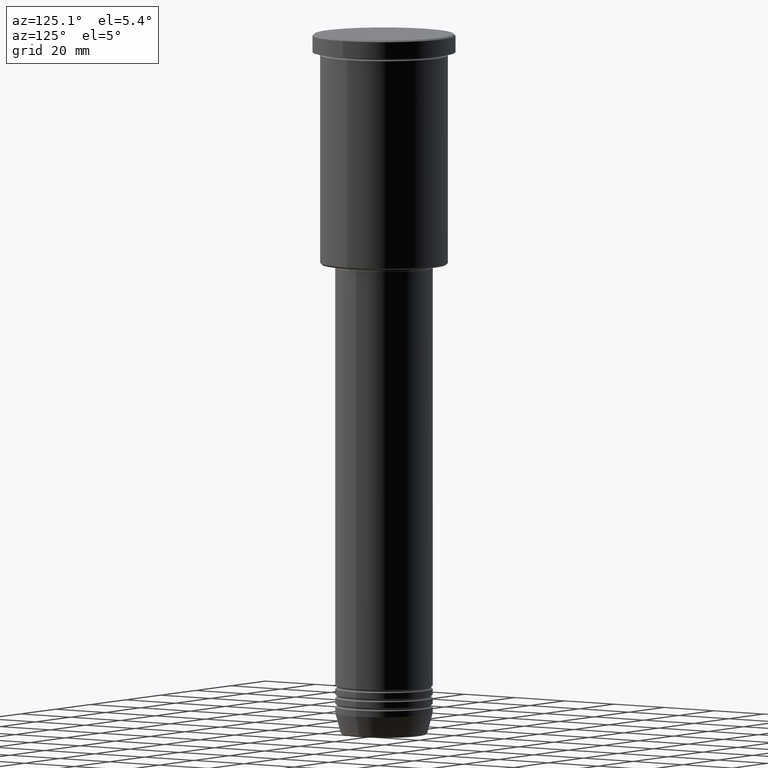
[diagram: clean part render]
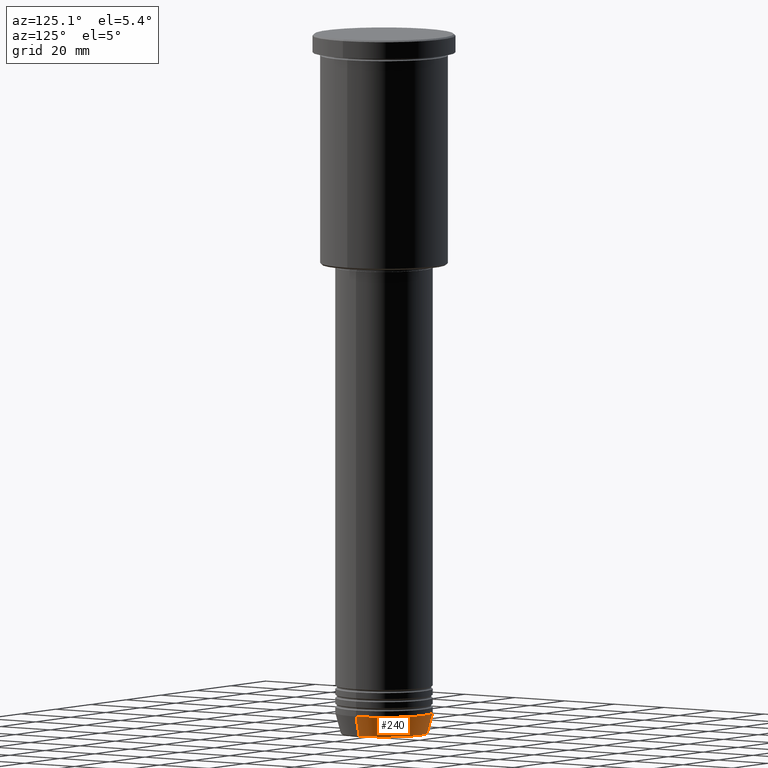
[diagram: same view with one face highlighted and labeled with its STEP entity id]
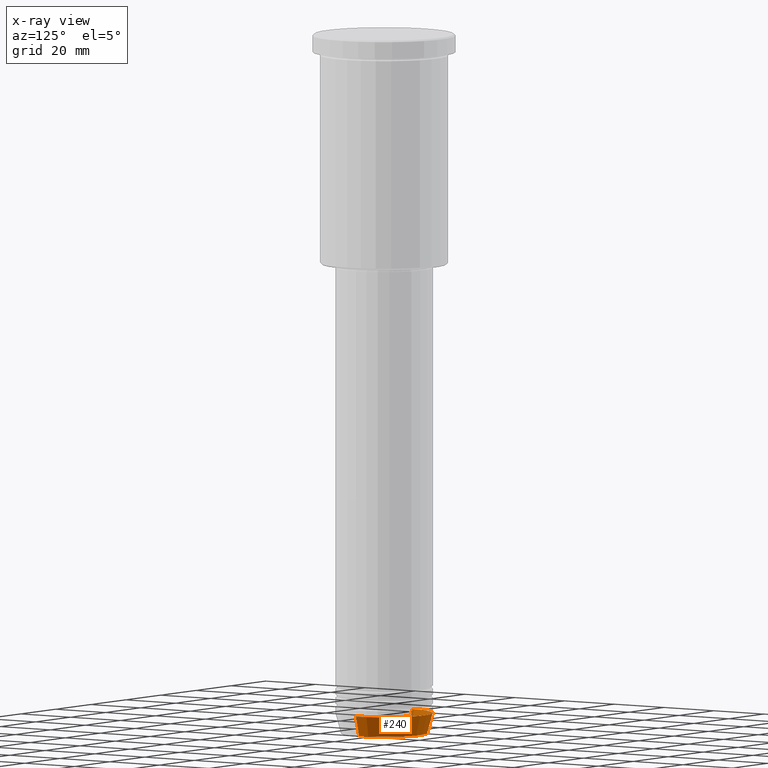
[diagram: x-ray of the same camera — body ghosted, the highlighted face saturated]
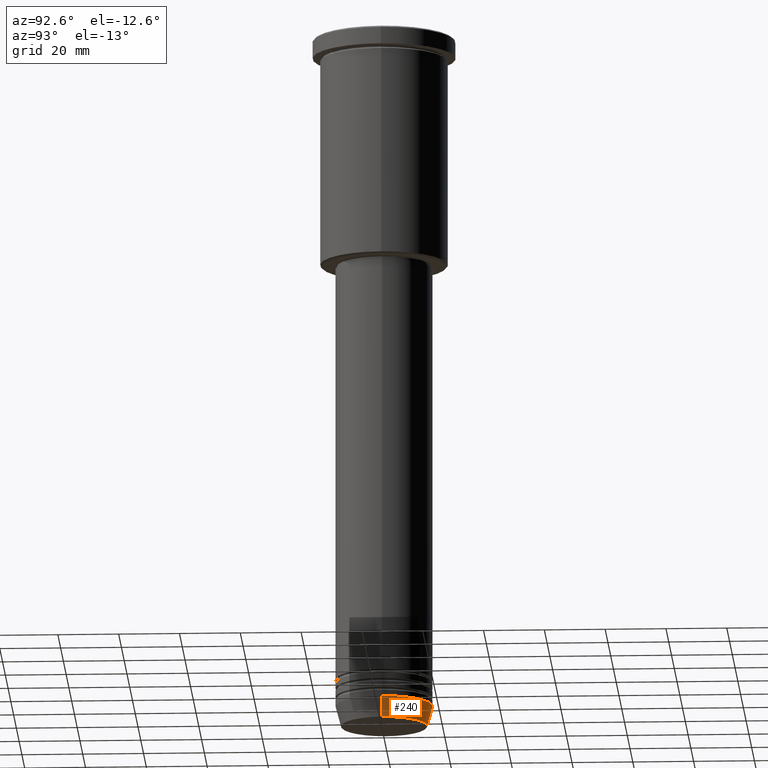
[diagram: same view with one face highlighted and labeled with its STEP entity id]
A machine part, auxiliary view. The second image highlights one B-rep face of the part: STEP entity #240.
The next image is the same camera in x-ray: the body ghosted, the highlighted face saturated — about 1% of this face is hidden behind the body in this view.
A second angle (auxiliary view) of the same face is appended — the face is thin or edge-on in the first view.
In plain terms, the highlighted conical surface has half-angle 15 deg.
Its self-contained STEP definition (entity closure, byte-faithful):
#16 = CARTESIAN_POINT ( 'NONE',  ( -14.22365507213719660, 1.850665122131324126E-15, -230.6294095225512706 ) ) ;
#19 = CARTESIAN_POINT ( 'NONE',  ( -16.00000000000000000, 1.959434878635765131E-15, -224.0000000000000000 ) ) ;
#51 = VECTOR ( 'NONE', #360, 1000.000000000000000 ) ;
#67 = CIRCLE ( 'NONE', #738, 14.22365507213719660 ) ;
#154 = FACE_OUTER_BOUND ( 'NONE', #1097, .T. ) ;
#191 = DIRECTION ( 'NONE',  ( 1.000000000000000000, 0.000000000000000000, 0.000000000000000000 ) ) ;
#198 = CARTESIAN_POINT ( 'NONE',  ( 0.000000000000000000, 0.000000000000000000, -224.0000000000000000 ) ) ;
#240 = ADVANCED_FACE ( 'NONE', ( #154 ), #856, .T. ) ;
#294 = CARTESIAN_POINT ( 'NONE',  ( 14.22365507213719660, 0.000000000000000000, -230.6294095225512706 ) ) ;
#308 = EDGE_CURVE ( 'NONE', #997, #991, #67, .T. ) ;
#339 = EDGE_CURVE ( 'NONE', #991, #793, #1091, .T. ) ;
#347 = CARTESIAN_POINT ( 'NONE',  ( 0.000000000000000000, 0.000000000000000000, -224.0000000000000000 ) ) ;
#360 = DIRECTION ( 'NONE',  ( 0.2588190451025213501, 0.000000000000000000, 0.9659258262890680902 ) ) ;
#380 = ORIENTED_EDGE ( 'NONE', *, *, #804, .F. ) ;
#437 = LINE ( 'NONE', #1101, #51 ) ;
#445 = ORIENTED_EDGE ( 'NONE', *, *, #308, .T. ) ;
#450 = CARTESIAN_POINT ( 'NONE',  ( -16.00000000000000000, 1.959434878635765131E-15, -224.0000000000000000 ) ) ;
#496 = CARTESIAN_POINT ( 'NONE',  ( 16.00000000000000000, 0.000000000000000000, -224.0000000000000000 ) ) ;
#555 = DIRECTION ( 'NONE',  ( -0.000000000000000000, -0.000000000000000000, 1.000000000000000000 ) ) ;
#568 = AXIS2_PLACEMENT_3D ( 'NONE', #198, #555, #191 ) ;
#578 = AXIS2_PLACEMENT_3D ( 'NONE', #347, #975, #796 ) ;
#597 = VECTOR ( 'NONE', #911, 1000.000000000000000 ) ;
#626 = DIRECTION ( 'NONE',  ( 1.000000000000000000, 0.000000000000000000, 0.000000000000000000 ) ) ;
#647 = ORIENTED_EDGE ( 'NONE', *, *, #339, .T. ) ;
#717 = VERTEX_POINT ( 'NONE', #496 ) ;
#738 = AXIS2_PLACEMENT_3D ( 'NONE', #838, #985, #626 ) ;
#793 = VERTEX_POINT ( 'NONE', #450 ) ;
#796 = DIRECTION ( 'NONE',  ( 1.000000000000000000, 0.000000000000000000, 0.000000000000000000 ) ) ;
#804 = EDGE_CURVE ( 'NONE', #997, #717, #437, .T. ) ;
#838 = CARTESIAN_POINT ( 'NONE',  ( 0.000000000000000000, 0.000000000000000000, -230.6294095225512706 ) ) ;
#856 = CONICAL_SURFACE ( 'NONE', #578, 16.00000000000000000, 0.2617993877991500740 ) ;
#878 = ORIENTED_EDGE ( 'NONE', *, *, #1017, .F. ) ;
#911 = DIRECTION ( 'NONE',  ( -0.2588190451025213501, 3.169619151431772337E-17, 0.9659258262890680902 ) ) ;
#975 = DIRECTION ( 'NONE',  ( -0.000000000000000000, -0.000000000000000000, 1.000000000000000000 ) ) ;
#985 = DIRECTION ( 'NONE',  ( -0.000000000000000000, -0.000000000000000000, 1.000000000000000000 ) ) ;
#991 = VERTEX_POINT ( 'NONE', #16 ) ;
#997 = VERTEX_POINT ( 'NONE', #294 ) ;
#1017 = EDGE_CURVE ( 'NONE', #717, #793, #1108, .T. ) ;
#1091 = LINE ( 'NONE', #19, #597 ) ;
#1097 = EDGE_LOOP ( 'NONE', ( #445, #647, #878, #380 ) ) ;
#1101 = CARTESIAN_POINT ( 'NONE',  ( 16.00000000000000000, 0.000000000000000000, -224.0000000000000000 ) ) ;
#1108 = CIRCLE ( 'NONE', #568, 16.00000000000000000 ) ;